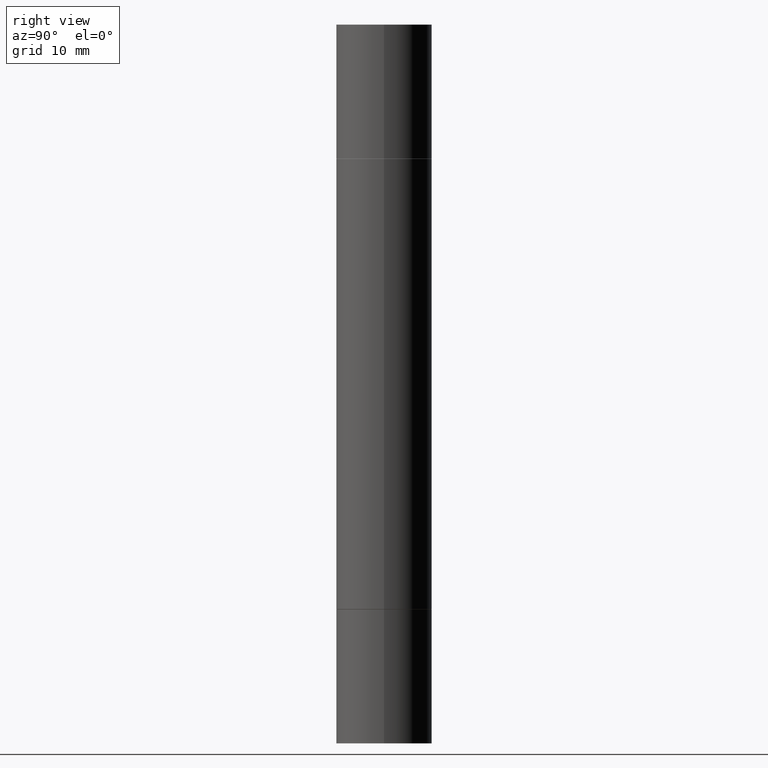
[diagram: clean part render]
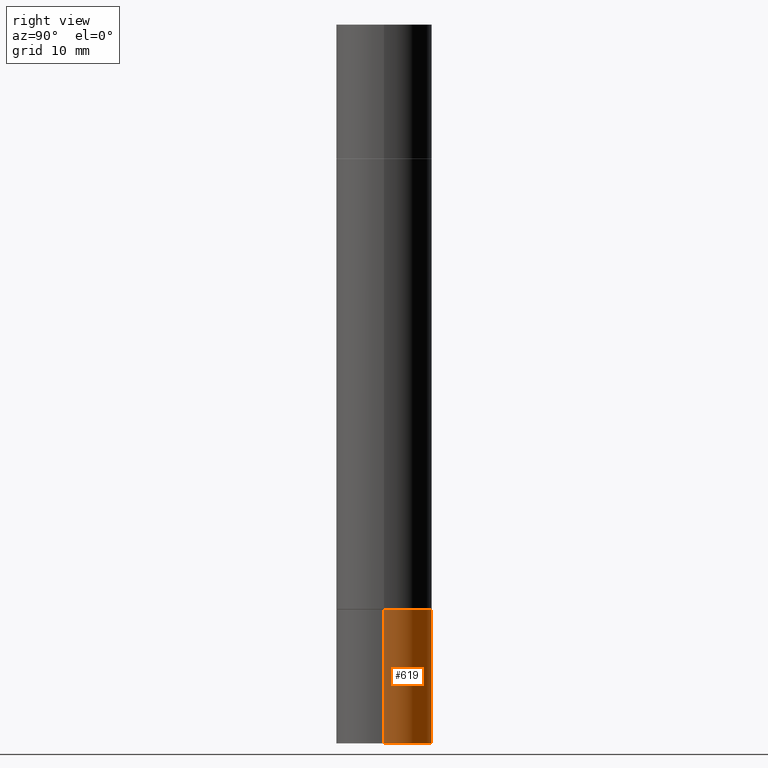
[diagram: same view with one face highlighted and labeled with its STEP entity id]
A machine part, right view. The second image highlights one B-rep face of the part: STEP entity #619.
In plain terms, the highlighted cylindrical surface (partial cylindrical patch) has radius 5 mm, axis along (-0, 0, 1).
Its self-contained STEP definition (entity closure, byte-faithful):
#19 = DIRECTION ( 'NONE',  ( -2.445468806185136597E-29, 3.491481338843145583E-15, 1.000000000000000000 ) ) ;
#28 = CARTESIAN_POINT ( 'NONE',  ( 0.1968500000000000250, -9.759737786468237294E-15, -2.401599999999999735 ) ) ;
#34 = VECTOR ( 'NONE', #273, 39.37007874015748143 ) ;
#35 = CARTESIAN_POINT ( 'NONE',  ( 0.000000000000000000, 0.000000000000000000, 0.000000000000000000 ) ) ;
#57 = VERTEX_POINT ( 'NONE', #28 ) ;
#100 = ORIENTED_EDGE ( 'NONE', *, *, #606, .F. ) ;
#122 = FACE_OUTER_BOUND ( 'NONE', #223, .T. ) ;
#141 = VECTOR ( 'NONE', #509, 39.37007874015748143 ) ;
#164 = LINE ( 'NONE', #486, #34 ) ;
#168 = ORIENTED_EDGE ( 'NONE', *, *, #557, .T. ) ;
#176 = LINE ( 'NONE', #292, #141 ) ;
#182 = DIRECTION ( 'NONE',  ( 1.000000000000000000, -6.982962677686265922E-15, 4.876176775795935793E-29 ) ) ;
#195 = DIRECTION ( 'NONE',  ( 1.000000000000000000, -6.982962677686262766E-15, 0.000000000000000000 ) ) ;
#223 = EDGE_LOOP ( 'NONE', ( #168, #612, #100, #447 ) ) ;
#231 = DIRECTION ( 'NONE',  ( -2.445468806185136597E-29, 3.491481338843145583E-15, 1.000000000000000000 ) ) ;
#246 = CIRCLE ( 'NONE', #423, 0.1968500000000000250 ) ;
#273 = DIRECTION ( 'NONE',  ( -2.445468806185136877E-29, 3.491481338843145188E-15, 1.000000000000000000 ) ) ;
#292 = CARTESIAN_POINT ( 'NONE',  ( 0.1968500000000000250, -1.374596203102541608E-15, 9.598753983154300858E-30 ) ) ;
#342 = DIRECTION ( 'NONE',  ( 1.000000000000000000, -6.982962677686267499E-15, 0.000000000000000000 ) ) ;
#348 = CARTESIAN_POINT ( 'NONE',  ( -0.1968500000000000250, -7.948690465007109319E-15, -2.952799999999999869 ) ) ;
#366 = CARTESIAN_POINT ( 'NONE',  ( 0.1968500000000000250, -1.168424230043858014E-14, -2.952799999999999869 ) ) ;
#368 = VERTEX_POINT ( 'NONE', #366 ) ;
#423 = AXIS2_PLACEMENT_3D ( 'NONE', #449, #231, #342 ) ;
#432 = AXIS2_PLACEMENT_3D ( 'NONE', #560, #19, #195 ) ;
#447 = ORIENTED_EDGE ( 'NONE', *, *, #583, .F. ) ;
#449 = CARTESIAN_POINT ( 'NONE',  ( 7.220980290903470182E-29, -1.030964609733603853E-14, -2.952799999999999869 ) ) ;
#472 = EDGE_CURVE ( 'NONE', #585, #580, #164, .T. ) ;
#486 = CARTESIAN_POINT ( 'NONE',  ( -0.1968500000000000250, 1.398703375343757393E-15, -9.682923725166783677E-30 ) ) ;
#499 = DIRECTION ( 'NONE',  ( -2.445468806185136597E-29, 3.491481338843145583E-15, 1.000000000000000000 ) ) ;
#509 = DIRECTION ( 'NONE',  ( -2.445468806185136877E-29, 3.491481338843145188E-15, 1.000000000000000000 ) ) ;
#542 = CIRCLE ( 'NONE', #432, 0.1968500000000000250 ) ;
#557 = EDGE_CURVE ( 'NONE', #368, #585, #246, .T. ) ;
#560 = CARTESIAN_POINT ( 'NONE',  ( 5.873037884934223228E-29, -8.385141583365697263E-15, -2.401599999999999735 ) ) ;
#564 = CARTESIAN_POINT ( 'NONE',  ( -0.1968500000000000250, -7.948690465007109319E-15, -2.401599999999999735 ) ) ;
#574 = AXIS2_PLACEMENT_3D ( 'NONE', #35, #499, #182 ) ;
#580 = VERTEX_POINT ( 'NONE', #564 ) ;
#583 = EDGE_CURVE ( 'NONE', #368, #57, #176, .T. ) ;
#585 = VERTEX_POINT ( 'NONE', #348 ) ;
#606 = EDGE_CURVE ( 'NONE', #57, #580, #542, .T. ) ;
#610 = CYLINDRICAL_SURFACE ( 'NONE', #574, 0.1968500000000000250 ) ;
#612 = ORIENTED_EDGE ( 'NONE', *, *, #472, .T. ) ;
#619 = ADVANCED_FACE ( 'NONE', ( #122 ), #610, .T. ) ;